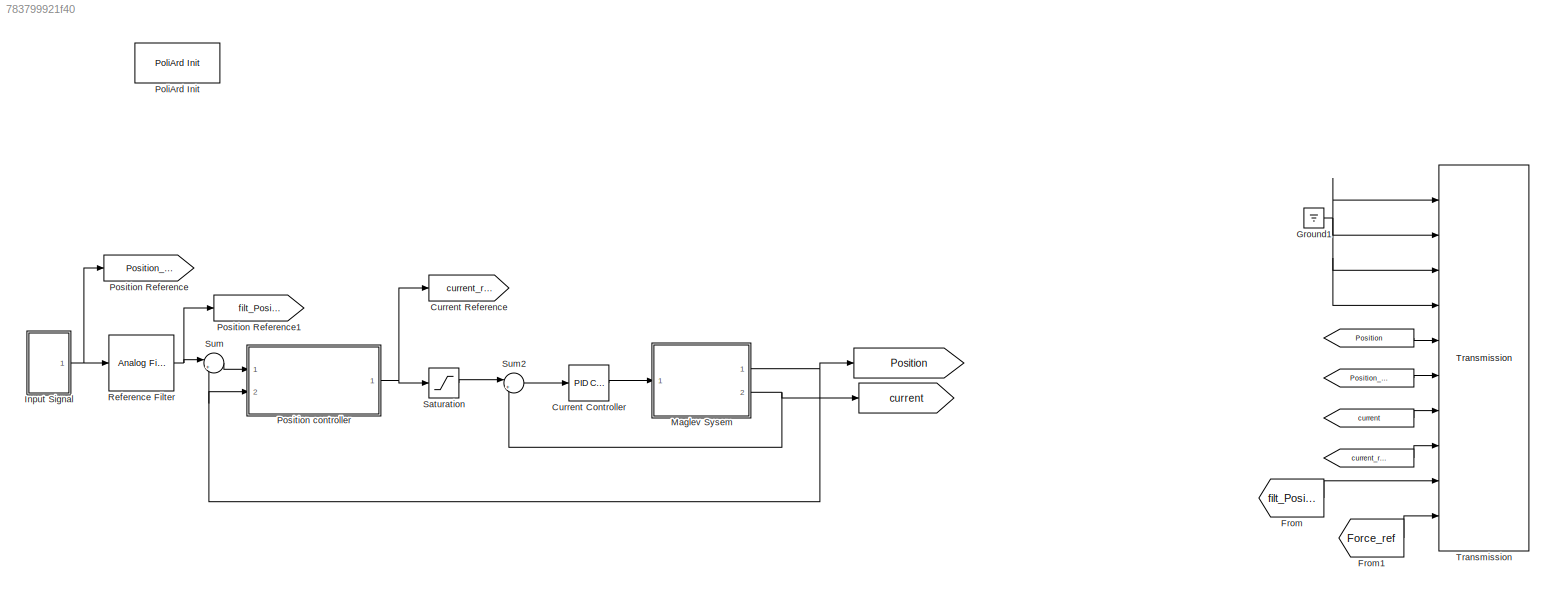
MODEL slx_783799921f40
KIND model
CONFIG AbsTol = auto
CONFIG FixedStep = auto
CONFIG MaxStep = auto
CONFIG MinStep = auto
CONFIG RelTol = 1e-3
CONFIG SampleTimeConstraint = Unconstrained
CONFIG Solver = ode45
CONFIG SolverMode = Auto
CONFIG SolverName = ode45
CONFIG StartTime = 0.0
CONFIG StopTime = 10.0
BLOCK [Goto]  
  GotoTag = current
BLOCK [Goto]   
  GotoTag = Position
BLOCK [From]    
  GotoTag = current
BLOCK [From]     
  GotoTag = current_ref
BLOCK [From]        
  GotoTag = Position
BLOCK [From]               
  GotoTag = Position_ref
BLOCK [Reference] Current Controller  REF=simulink/Continuous/PID Controller
  AntiWindupMode = none
  Controller = PID
  ControllerParametersSource = internal
  D = 0
  DGainOutDataTypeStr = Inherit: Inherit via internal rule
  DOutDataTypeStr = Inherit: Inherit via internal rule
  DOutMax = []
  DOutMin = []
  DParamDataTypeStr = Inherit: Inherit via internal rule
  DParamMax = []
  DParamMin = []
  DProdOutDataTypeStr = Inherit: Inherit via internal rule
  DifferentiatorICPrevScaledInput = 0
  DifferentiatorOutDataTypeStr = Inherit: Inherit via internal rule
  DifferentiatorOutMax = []
  DifferentiatorOutMin = []
  ExternalReset = none
  FilterContinuousStateAttributes = ''
  FilterMethod = Forward Euler
  FilterOutDataTypeStr = Inherit: Inherit via internal rule
  FilterOutMax = []
  FilterOutMin = []
  FilterRTWStateStorageClass = Auto
  FilterStateMustResolveToSignalObject = off
  Form = Parallel
  I = 350
  IGainOutDataTypeStr = Inherit: Inherit via internal rule
  IOutDataTypeStr = Inherit: Inherit via internal rule
  IOutMax = []
  IOutMin = []
  IParamDataTypeStr = Inherit: Inherit via internal rule
  IParamMax = []
  IParamMin = []
  IProdOutDataTypeStr = Inherit: Inherit via internal rule
  IgnoreLimit = off
  InitialConditionForFilter = 0
  InitialConditionForIntegrator = 0
  InitialConditionSource = internal
  IntegratorContinuousStateAttributes = ''
  IntegratorMethod = Forward Euler
  IntegratorOutDataTypeStr = Inherit: Inherit via internal rule
  IntegratorOutMax = []
  IntegratorOutMin = []
  IntegratorRTWStateStorageClass = Auto
  IntegratorStateMustResolveToSignalObject = off
  Kb = 1
  KbOutDataTypeStr = Inherit: Inherit via internal rule
  KbOutMax = []
  KbOutMin = []
  KbParamDataTypeStr = Inherit: Inherit via internal rule
  KbParamMax = []
  KbParamMin = []
  Kt = 1
  KtOutDataTypeStr = Inherit: Inherit via internal rule
  KtOutMax = []
  KtOutMin = []
  KtParamDataTypeStr = Inherit: Inherit via internal rule
  KtParamMax = []
  KtParamMin = []
  LimitOutput = on
  LinearizeAsGain = on
  LockScale = off
  LowerSaturationLimit = -24
  N = 0
  NGainOutDataTypeStr = Inherit: Inherit via internal rule
  NOutDataTypeStr = Inherit: Inherit via internal rule
  NOutMax = []
  NOutMin = []
  NParamDataTypeStr = Inherit: Inherit via internal rule
  NParamMax = []
  NParamMin = []
  NProdOutDataTypeStr = Inherit: Inherit via internal rule
  P = 35
  PGainOutDataTypeStr = Inherit: Inherit via internal rule
  POutDataTypeStr = Inherit: Inherit via internal rule
  POutMax = []
  POutMin = []
  PParamDataTypeStr = Inherit: Inherit via internal rule
  PParamMax = []
  PParamMin = []
  PProdOutDataTypeStr = Inherit: Inherit via internal rule
  Ports = [1, 1]
  RndMeth = Floor
  SampleTime = -1
  SaturateOnIntegerOverflow = off
  SaturationOutDataTypeStr = Inherit: Same as input
  SaturationOutMax = []
  SaturationOutMin = []
  SourceBlock = simulink/Continuous/PID Controller
  SourceType = PID 1dof
  SumAccumDataTypeStr = Inherit: Inherit via internal rule
  SumDAccumDataTypeStr = Inherit: Inherit via internal rule
  SumDOutDataTypeStr = Inherit: Inherit via internal rule
  SumDOutMax = []
  SumDOutMin = []
  SumI1AccumDataTypeStr = Inherit: Inherit via internal rule
  SumI1OutDataTypeStr = Inherit: Inherit via internal rule
  SumI1OutMax = []
  SumI1OutMin = []
  SumI2AccumDataTypeStr = Inherit: Inherit via internal rule
  SumI2OutDataTypeStr = Inherit: Inherit via internal rule
  SumI2OutMax = []
  SumI2OutMin = []
  SumI3AccumDataTypeStr = Inherit: Inherit via internal rule
  SumI3OutDataTypeStr = Inherit: Inherit via internal rule
  SumI3OutMax = []
  SumI3OutMin = []
  SumOutDataTypeStr = Inherit: Inherit via internal rule
  SumOutMax = []
  SumOutMin = []
  TimeDomain = Continuous-time
  TrackingMode = off
  UpperSaturationLimit = 24
  UseFilter = on
  ZeroCross = on
BLOCK [Goto] Current Reference
  GotoTag = current_ref
BLOCK [From] From
  GotoTag = filt_Position_ref
BLOCK [From] From1
  GotoTag = Force_ref
BLOCK [Ground] Ground1
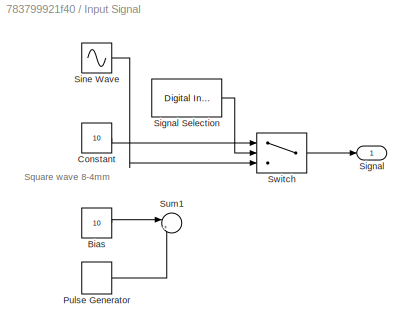
BLOCK [SubSystem] Input Signal
  Ports = [0, 1]
  RequestExecContextInheritance = off
BLOCK [Constant] Input Signal/Bias
  Value = 10
BLOCK [Constant] Input Signal/Constant
  Value = 10
BLOCK [DiscretePulseGenerator] Input Signal/Pulse Generator
  Amplitude = 4
  Period = 4
  Ports = [0, 1]
  PulseType = Time based
  PulseWidth = 50
BLOCK [Outport] Input Signal/Signal
  IconDisplay = Port number
BLOCK [Reference] Input Signal/Signal Selection  REF=PoliArd/Digital Input
  DI_pin = 2
  DIsample = -1
  Ports = [0, 1]
  SourceBlock = PoliArd/Digital Input
  SourceType = PoliArd Digital Input
BLOCK [Sin] Input Signal/Sine Wave
  Amplitude = 2
  Bias = 8
  Frequency = 3
  Ports = [0, 1]
  SampleTime = 0
BLOCK [Sum] Input Signal/Sum1
  IconShape = round
  InputSameDT = off
  Inputs = |+-
  OutDataTypeStr = Inherit: Inherit via internal rule
  Ports = [2, 1]
  SaturateOnIntegerOverflow = off
BLOCK [Switch] Input Signal/Switch
  Criteria = u2 > Threshold
  InputSameDT = off
  SaturateOnIntegerOverflow = off
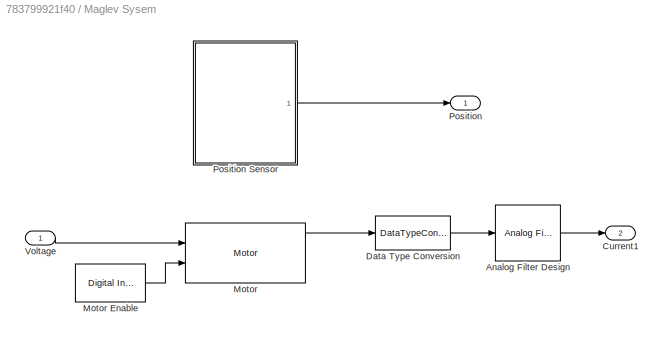
BLOCK [SubSystem] Maglev Sysem
  Ports = [1, 2]
  RequestExecContextInheritance = off
BLOCK [Reference] Maglev Sysem/Analog Filter Design  REF=dsparch4/Analog
Filter Design
  N = 1
  Ports = [1, 1]
  Rp = 2
  Rs = 40
  SourceBlock = dsparch4/Analog\nFilter Design
  SourceType = Analog Filter Design
  Whi = 80
  Wlo = 150
  filttype = Lowpass
  method = Butterworth
BLOCK [Outport] Maglev Sysem/Current1
  IconDisplay = Port number
  Port = 2
BLOCK [DataTypeConversion] Maglev Sysem/Data Type Conversion
  RndMeth = Floor
  SaturateOnIntegerOverflow = off
BLOCK [Reference] Maglev Sysem/Motor  REF=PoliArd/Motor
  DC_bus_mask = 24
  MotorID = 2
  Ports = [2, 3]
  SourceBlock = PoliArd/Motor
  SourceType = PoliArd Motor
  dt_mot = -1
BLOCK [Reference] Maglev Sysem/Motor Enable  REF=PoliArd/Digital Input
  DI_pin = 3
  DIsample = -1
  Ports = [0, 1]
  SourceBlock = PoliArd/Digital Input
  SourceType = PoliArd Digital Input
BLOCK [Outport] Maglev Sysem/Position
  IconDisplay = Port number
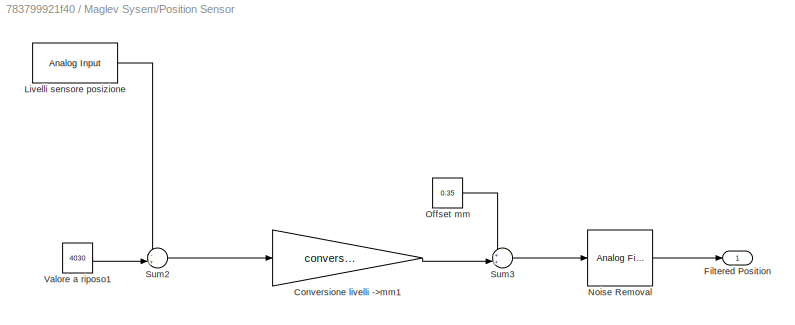
BLOCK [SubSystem] Maglev Sysem/Position Sensor
  Ports = [0, 1]
  RequestExecContextInheritance = off
BLOCK [Gain] Maglev Sysem/Position Sensor/Conversione livelli ->mm1
  Gain = conversion_V2mm
  OutDataTypeStr = Inherit: Inherit via internal rule
  ParamDataTypeStr = Inherit: Inherit via internal rule
  SaturateOnIntegerOverflow = off
BLOCK [Outport] Maglev Sysem/Position Sensor/Filtered Position
  IconDisplay = Port number
BLOCK [Reference] Maglev Sysem/Position Sensor/Livelli sensore posizione   REF=PoliArd/Analog Input
  AIpin_mask = 2
  AIsample = -1
  Ports = [0, 1]
  SourceBlock = PoliArd/Analog Input
  SourceType = PoliArd Analog Input
BLOCK [Reference] Maglev Sysem/Position Sensor/Noise Removal  REF=dsparch4/Analog
Filter Design
  N = 1
  Ports = [1, 1]
  Rp = 2
  Rs = 40
  SourceBlock = dsparch4/Analog\nFilter Design
  SourceType = Analog Filter Design
  Whi = 80
  Wlo = 85
  filttype = Lowpass
  method = Butterworth
BLOCK [Constant] Maglev Sysem/Position Sensor/Offset mm
  Value = 0.35
BLOCK [Sum] Maglev Sysem/Position Sensor/Sum2
  IconShape = round
  InputSameDT = off
  Inputs = -+|
  OutDataTypeStr = Inherit: Inherit via internal rule
  Ports = [2, 1]
  SaturateOnIntegerOverflow = off
BLOCK [Sum] Maglev Sysem/Position Sensor/Sum3
  IconShape = round
  InputSameDT = off
  Inputs = ++|
  OutDataTypeStr = Inherit: Inherit via internal rule
  Ports = [2, 1]
  SaturateOnIntegerOverflow = off
BLOCK [Constant] Maglev Sysem/Position Sensor/Valore a riposo1
  Value = 4030
BLOCK [Inport] Maglev Sysem/Voltage
  IconDisplay = Port number
BLOCK [Reference] PoliArd Init  REF=PoliArd/PoliArd Init
  Ports = []
  SourceBlock = PoliArd/PoliArd Init
  SourceType = PoliArd Configurator
BLOCK [Goto] Position Reference
  GotoTag = Position_ref
BLOCK [Goto] Position Reference1
  GotoTag = filt_Position_ref
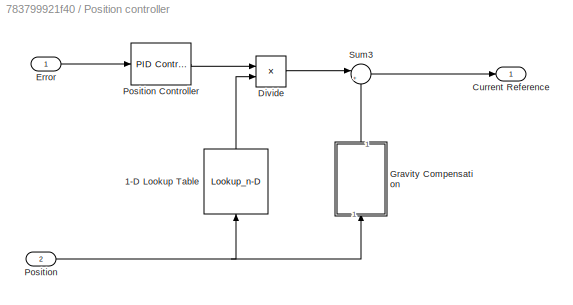
BLOCK [SubSystem] Position controller
  Ports = [2, 1]
  RequestExecContextInheritance = off
BLOCK [Lookup_n-D] Position controller/1-D Lookup Table
  BreakpointsForDimension1 = deltaVals
  InternalRulePriority = Speed
  NumberOfTableDimensions = 1
  Ports = [1, 1]
  RndMeth = Simplest
  Table = Kvals
BLOCK [Outport] Position controller/Current Reference
  IconDisplay = Port number
BLOCK [Product] Position controller/Divide
  InputSameDT = off
  Inputs = */
  OutDataTypeStr = Inherit: Inherit via internal rule
  Ports = [2, 1]
  RndMeth = Floor
  SaturateOnIntegerOverflow = off
BLOCK [Inport] Position controller/Error
  IconDisplay = Port number
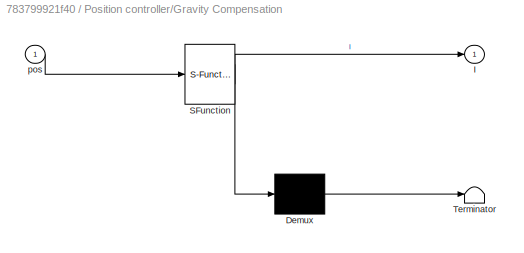
BLOCK [SubSystem] Position controller/Gravity Compensation
  ErrorFcn = Stateflow.Translate.translate
  PermitHierarchicalResolution = ExplicitOnly
  Ports = [1, 1]
  RequestExecContextInheritance = off
  SFBlockType = MATLAB Function
  TreatAsAtomicUnit = on
BLOCK [Demux] Position controller/Gravity Compensation/ Demux 
  Outputs = 1
  Ports = [1, 1]
BLOCK [S-Function] Position controller/Gravity Compensation/ SFunction 
  EnableBusSupport = on
  FunctionName = sf_sfun
  PortCounts = [1 2]
  Ports = [1, 2]
  Tag = Stateflow S-Function Weighted_Grav_comp_final 1
BLOCK [Terminator] Position controller/Gravity Compensation/ Terminator 
BLOCK [Outport] Position controller/Gravity Compensation/I
  IconDisplay = Port number
BLOCK [Inport] Position controller/Gravity Compensation/pos
  IconDisplay = Port number
BLOCK [Inport] Position controller/Position
  IconDisplay = Port number
  Port = 2
BLOCK [Reference] Position controller/Position Controller  REF=simulink/Continuous/PID Controller
  AntiWindupMode = back-calculation
  Controller = PID
  ControllerParametersSource = internal
  D = -0.15
  DGainOutDataTypeStr = Inherit: Inherit via internal rule
  DOutDataTypeStr = Inherit: Inherit via internal rule
  DOutMax = []
  DOutMin = []
  DParamDataTypeStr = Inherit: Inherit via internal rule
  DParamMax = []
  DParamMin = []
  DProdOutDataTypeStr = Inherit: Inherit via internal rule
  DifferentiatorICPrevScaledInput = 0
  DifferentiatorOutDataTypeStr = Inherit: Inherit via internal rule
  DifferentiatorOutMax = []
  DifferentiatorOutMin = []
  ExternalReset = none
  FilterContinuousStateAttributes = ''
  FilterMethod = Forward Euler
  FilterOutDataTypeStr = Inherit: Inherit via internal rule
  FilterOutMax = []
  FilterOutMin = []
  FilterRTWStateStorageClass = Auto
  FilterStateMustResolveToSignalObject = off
  Form = Parallel
  I = -40
  IGainOutDataTypeStr = Inherit: Inherit via internal rule
  IOutDataTypeStr = Inherit: Inherit via internal rule
  IOutMax = []
  IOutMin = []
  IParamDataTypeStr = Inherit: Inherit via internal rule
  IParamMax = []
  IParamMin = []
  IProdOutDataTypeStr = Inherit: Inherit via internal rule
  IgnoreLimit = off
  InitialConditionForFilter = 0
  InitialConditionForIntegrator = 0
  InitialConditionSource = internal
  IntegratorContinuousStateAttributes = ''
  IntegratorMethod = Forward Euler
  IntegratorOutDataTypeStr = Inherit: Inherit via internal rule
  IntegratorOutMax = []
  IntegratorOutMin = []
  IntegratorRTWStateStorageClass = Auto
  IntegratorStateMustResolveToSignalObject = off
  Kb = 1
  KbOutDataTypeStr = Inherit: Inherit via internal rule
  KbOutMax = []
  KbOutMin = []
  KbParamDataTypeStr = Inherit: Inherit via internal rule
  KbParamMax = []
  KbParamMin = []
  Kt = 1
  KtOutDataTypeStr = Inherit: Inherit via internal rule
  KtOutMax = []
  KtOutMin = []
  KtParamDataTypeStr = Inherit: Inherit via internal rule
  KtParamMax = []
  KtParamMin = []
  LimitOutput = on
  LinearizeAsGain = on
  LockScale = off
  LowerSaturationLimit = -8
  N = 100
  NGainOutDataTypeStr = Inherit: Inherit via internal rule
  NOutDataTypeStr = Inherit: Inherit via internal rule
  NOutMax = []
  NOutMin = []
  NParamDataTypeStr = Inherit: Inherit via internal rule
  NParamMax = []
  NParamMin = []
  NProdOutDataTypeStr = Inherit: Inherit via internal rule
  P = -2
  PGainOutDataTypeStr = Inherit: Inherit via internal rule
  POutDataTypeStr = Inherit: Inherit via internal rule
  POutMax = []
  POutMin = []
  PParamDataTypeStr = Inherit: Inherit via internal rule
  PParamMax = []
  PParamMin = []
  PProdOutDataTypeStr = Inherit: Inherit via internal rule
  Ports = [1, 1]
  RndMeth = Floor
  SampleTime = -1
  SaturateOnIntegerOverflow = off
  SaturationOutDataTypeStr = Inherit: Same as input
  SaturationOutMax = []
  SaturationOutMin = []
  SourceBlock = simulink/Continuous/PID Controller
  SourceType = PID 1dof
  SumAccumDataTypeStr = Inherit: Inherit via internal rule
  SumDAccumDataTypeStr = Inherit: Inherit via internal rule
  SumDOutDataTypeStr = Inherit: Inherit via internal rule
  SumDOutMax = []
  SumDOutMin = []
  SumI1AccumDataTypeStr = Inherit: Inherit via internal rule
  SumI1OutDataTypeStr = Inherit: Inherit via internal rule
  SumI1OutMax = []
  SumI1OutMin = []
  SumI2AccumDataTypeStr = Inherit: Inherit via internal rule
  SumI2OutDataTypeStr = Inherit: Inherit via internal rule
  SumI2OutMax = []
  SumI2OutMin = []
  SumI3AccumDataTypeStr = Inherit: Inherit via internal rule
  SumI3OutDataTypeStr = Inherit: Inherit via internal rule
  SumI3OutMax = []
  SumI3OutMin = []
  SumOutDataTypeStr = Inherit: Inherit via internal rule
  SumOutMax = []
  SumOutMin = []
  TimeDomain = Continuous-time
  TrackingMode = off
  UpperSaturationLimit = 8
  UseFilter = on
  ZeroCross = on
BLOCK [Sum] Position controller/Sum3
  IconShape = round
  InputSameDT = off
  Inputs = |++
  OutDataTypeStr = Inherit: Inherit via internal rule
  Ports = [2, 1]
  SaturateOnIntegerOverflow = off
BLOCK [Reference] Reference Filter  REF=dsparch4/Analog
Filter Design
  N = 1
  Ports = [1, 1]
  Rp = 2
  Rs = 40
  SourceBlock = dsparch4/Analog\nFilter Design
  SourceType = Analog Filter Design
  Whi = 80
  Wlo = 10
  filttype = Lowpass
  method = Butterworth
BLOCK [Saturate] Saturation
  InputPortMap = u0
  LowerLimit = 0
  Ports = [1, 1]
  UpperLimit = 10
BLOCK [Sum] Sum
  IconShape = round
  InputSameDT = off
  Inputs = |+-
  OutDataTypeStr = Inherit: Inherit via internal rule
  Ports = [2, 1]
  SaturateOnIntegerOverflow = off
BLOCK [Sum] Sum2
  IconShape = round
  InputSameDT = off
  Inputs = |+-
  OutDataTypeStr = Inherit: Inherit via internal rule
  Ports = [2, 1]
  SaturateOnIntegerOverflow = off
BLOCK [Reference] Transmission  REF=PoliArd/Transmission
  Ports = [10]
  SourceBlock = PoliArd/Transmission
  SourceType = PoliArd Transmission
  sample_freq = 100
  sig_to_send = 6
ANNOTATION Input Signal: Square wave 8-4mm
LINE               :1 -> Transmission:6
LINE        :1 -> Transmission:5
LINE     :1 -> Transmission:8
LINE    :1 -> Transmission:7
LINE Current Controller:1 -> Maglev Sysem:1
LINE From1:1 -> Transmission:10
LINE From:1 -> Transmission:9
NET Ground1:1 -> Transmission:1, Transmission:2, Transmission:3, Transmission:4
LINE Input Signal/Bias:1 -> Input Signal/Sum1:1
LINE Input Signal/Constant:1 -> Input Signal/Switch:1
LINE Input Signal/Pulse Generator:1 -> Input Signal/Sum1:2
LINE Input Signal/Signal Selection:1 -> Input Signal/Switch:2
LINE Input Signal/Sine Wave:1 -> Input Signal/Switch:3
LINE Input Signal/Switch:1 -> Input Signal/Signal:1
NET Input Signal:1 -> Position Reference:1, Reference Filter:1
LINE Maglev Sysem/Analog Filter Design:1 -> Maglev Sysem/Current1:1
LINE Maglev Sysem/Data Type Conversion:1 -> Maglev Sysem/Analog Filter Design:1
LINE Maglev Sysem/Motor Enable:1 -> Maglev Sysem/Motor:2
LINE Maglev Sysem/Motor:1 -> Maglev Sysem/Data Type Conversion:1
LINE Maglev Sysem/Position Sensor/Conversione livelli ->mm1:1 -> Maglev Sysem/Position Sensor/Sum3:2
LINE Maglev Sysem/Position Sensor/Livelli sensore posizione :1 -> Maglev Sysem/Position Sensor/Sum2:1
LINE Maglev Sysem/Position Sensor/Noise Removal:1 -> Maglev Sysem/Position Sensor/Filtered Position:1
LINE Maglev Sysem/Position Sensor/Offset mm:1 -> Maglev Sysem/Position Sensor/Sum3:1
LINE Maglev Sysem/Position Sensor/Sum2:1 -> Maglev Sysem/Position Sensor/Conversione livelli ->mm1:1
LINE Maglev Sysem/Position Sensor/Sum3:1 -> Maglev Sysem/Position Sensor/Noise Removal:1
LINE Maglev Sysem/Position Sensor/Valore a riposo1:1 -> Maglev Sysem/Position Sensor/Sum2:2
LINE Maglev Sysem/Position Sensor:1 -> Maglev Sysem/Position:1
LINE Maglev Sysem/Voltage:1 -> Maglev Sysem/Motor:1
NET Maglev Sysem:1 ->   :1, Position controller:2, Sum:2
NET Maglev Sysem:2 ->  :1, Sum2:2
LINE Position controller/1-D Lookup Table:1 -> Position controller/Divide:2
LINE Position controller/Divide:1 -> Position controller/Sum3:1
LINE Position controller/Error:1 -> Position controller/Position Controller:1
LINE Position controller/Gravity Compensation:1 -> Position controller/Sum3:2
LINE Position controller/Position Controller:1 -> Position controller/Divide:1
NET Position controller/Position:1 -> Position controller/1-D Lookup Table:1, Position controller/Gravity Compensation:1
LINE Position controller/Sum3:1 -> Position controller/Current Reference:1
NET Position controller:1 -> Current Reference:1, Saturation:1
NET Reference Filter:1 -> Position Reference1:1, Sum:1
LINE Saturation:1 -> Sum2:1
LINE Sum2:1 -> Current Controller:1
LINE Sum:1 -> Position controller:1
note: NET lines group one-source signal fan-out (src -> all destinations, sorted); 1:1 wires keep LINE
CHART Position controller/Gravity Compensation states=1 transitions=1
  STATE_LABEL 'eML_blk_kernel()'
  STATE_LABEL 'SCRIPT:\nfunction I = fcn(pos)\nq=0.1139;\nm = 0.1932;\nI=pos*m+q;\n\nend'
